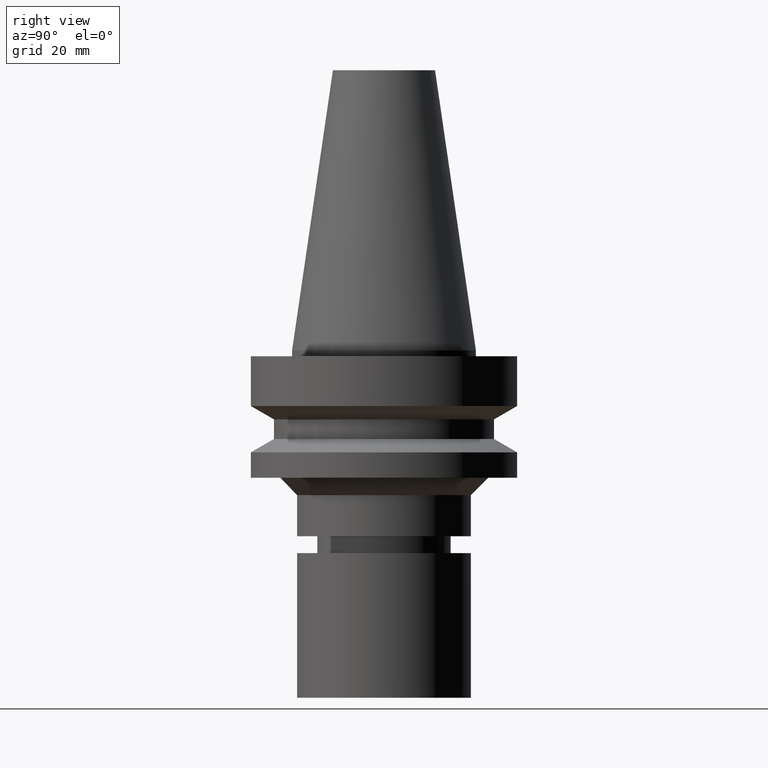
[diagram: clean part render]
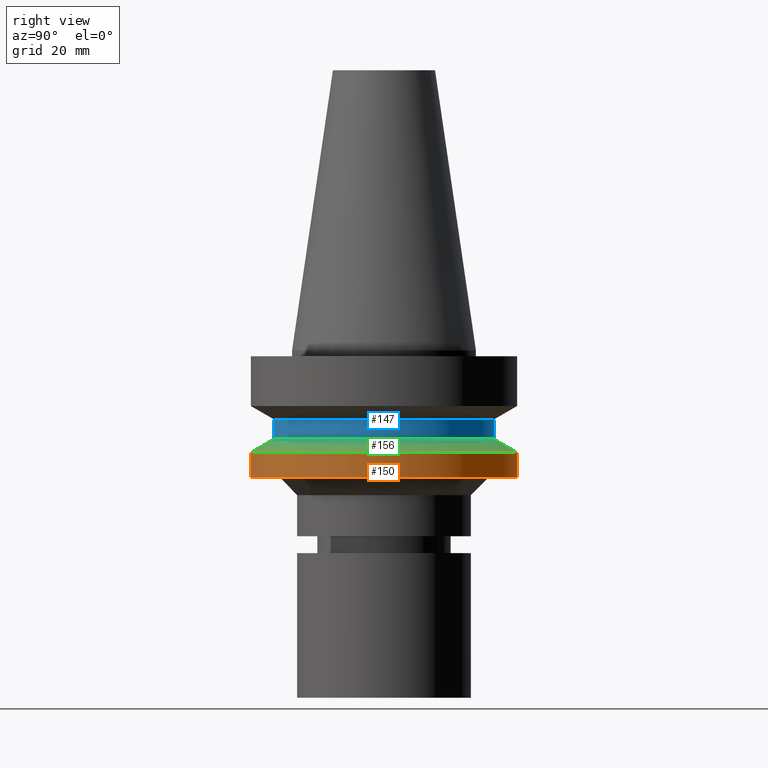
[diagram: same view with three faces highlighted in distinct colors, each labeled with its STEP entity id]
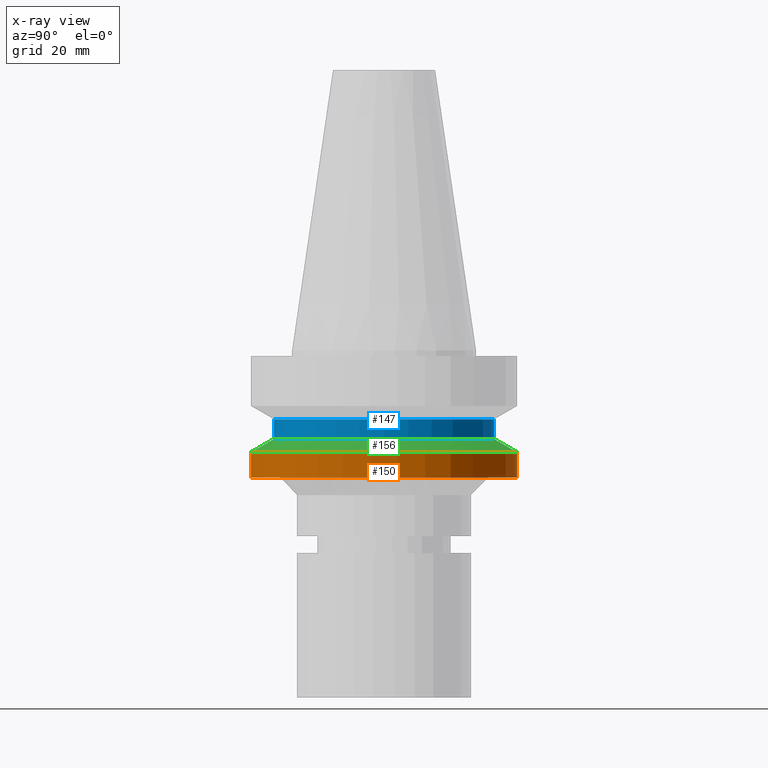
[diagram: x-ray of the same camera — body ghosted, the three highlighted faces saturated]
A machine part, right view with three faces highlighted in distinct colors.
The next image is the same camera in x-ray (body ghosted, the three faces saturated) — at least one of them is partly hidden behind the body in this view.
Their STEP definitions:

[orange] entity #150 — the highlighted cylindrical surface (bore or boss wall) has radius 23 mm, axis along (0, 0, -1).
#108=EDGE_CURVE('Unnamed[1]',#249,#249,#250,.T.);
#150=ADVANCED_FACE('Unnamed[1]',(#313,#314),#315,.T.);
#161=EDGE_CURVE('Unnamed[1]',#332,#332,#333,.T.);
#249=VERTEX_POINT('',#438);
#250=CIRCLE('',#439,23.0);
#313=FACE_BOUND('',#516,.T.);
#314=FACE_BOUND('',#517,.T.);
#315=CYLINDRICAL_SURFACE('',#518,23.0);
#332=VERTEX_POINT('',#539);
#333=CIRCLE('',#540,23.0);
#438=CARTESIAN_POINT('',(1.07768918324967E-015,23.0,-17.6));
#439=AXIS2_PLACEMENT_3D('',#630,#631,#632);
#516=EDGE_LOOP('',(#702));
#517=EDGE_LOOP('',(#703));
#518=AXIS2_PLACEMENT_3D('',#704,#705,#706);
#539=CARTESIAN_POINT('',(1.34711147906209E-015,23.0,-22.0));
#540=AXIS2_PLACEMENT_3D('',#725,#726,#727);
#630=CARTESIAN_POINT('',(1.07768918324967E-015,2.15537836649934E-015,-17.6));
#631=DIRECTION('',(6.12323399573677E-017,1.22464679914735E-016,-1.0));
#632=DIRECTION('',(-1.23259516440783E-032,1.0,1.22464679914735E-016));
#702=ORIENTED_EDGE('',*,*,#161,.F.);
#703=ORIENTED_EDGE('',*,*,#108,.T.);
#704=CARTESIAN_POINT('',(1.21240033115588E-015,2.42480066231176E-015,-19.8));
#705=DIRECTION('',(6.12323399573677E-017,1.22464679914735E-016,-1.0));
#706=DIRECTION('',(-1.23259516440783E-032,1.0,1.22464679914735E-016));
#725=CARTESIAN_POINT('',(1.34711147906209E-015,2.69422295812418E-015,-22.0));
#726=DIRECTION('',(6.12323399573677E-017,1.22464679914735E-016,-1.0));
#727=DIRECTION('',(-1.23259516440783E-032,1.0,1.22464679914735E-016));

[blue] entity #147 — the highlighted cylindrical surface (bore or boss wall) has radius 19 mm, axis along (0, 0, -1).
#87=EDGE_CURVE('Unnamed[1]',#219,#219,#220,.T.);
#89=EDGE_CURVE('Unnamed[1]',#222,#222,#223,.T.);
#147=ADVANCED_FACE('Unnamed[1]',(#308,#309),#310,.T.);
#219=VERTEX_POINT('',#400);
#220=CIRCLE('',#401,19.0);
#222=VERTEX_POINT('',#404);
#223=CIRCLE('',#405,19.0);
#308=FACE_BOUND('',#510,.T.);
#309=FACE_BOUND('',#511,.T.);
#310=CYLINDRICAL_SURFACE('',#512,19.0);
#400=CARTESIAN_POINT('',(9.36279151221199E-016,19.0,-15.29059892));
#401=AXIS2_PLACEMENT_3D('',#600,#601,#602);
#404=CARTESIAN_POINT('',(7.29240495619202E-016,19.0,-11.90940108));
#405=AXIS2_PLACEMENT_3D('',#603,#604,#605);
#510=EDGE_LOOP('',(#696));
#511=EDGE_LOOP('',(#697));
#512=AXIS2_PLACEMENT_3D('',#698,#699,#700);
#600=CARTESIAN_POINT('',(9.36279151221199E-016,1.8725583024424E-015,-15.29059892));
#601=DIRECTION('',(6.12323399573677E-017,1.22464679914735E-016,-1.0));
#602=DIRECTION('',(-1.23259516440783E-032,1.0,1.22464679914735E-016));
#603=CARTESIAN_POINT('',(7.29240495619202E-016,1.4584809912384E-015,-11.90940108));
#604=DIRECTION('',(6.12323399573677E-017,1.22464679914735E-016,-1.0));
#605=DIRECTION('',(-1.23259516440783E-032,1.0,1.22464679914735E-016));
#696=ORIENTED_EDGE('',*,*,#87,.F.);
#697=ORIENTED_EDGE('',*,*,#89,.T.);
#698=CARTESIAN_POINT('',(8.32759823420201E-016,1.6655196468404E-015,-13.6));
#699=DIRECTION('',(6.12323399573677E-017,1.22464679914735E-016,-1.0));
#700=DIRECTION('',(-1.23259516440783E-032,1.0,1.22464679914735E-016));

[green] entity #156 — the highlighted conical surface has half-angle 60 deg.
#87=EDGE_CURVE('Unnamed[1]',#219,#219,#220,.T.);
#108=EDGE_CURVE('Unnamed[1]',#249,#249,#250,.T.);
#156=ADVANCED_FACE('Unnamed[1]',(#323,#324),#325,.T.);
#219=VERTEX_POINT('',#400);
#220=CIRCLE('',#401,19.0);
#249=VERTEX_POINT('',#438);
#250=CIRCLE('',#439,23.0);
#323=FACE_BOUND('',#528,.T.);
#324=FACE_BOUND('',#529,.T.);
#325=CONICAL_SURFACE('',#530,21.0,1.04719755058882);
#400=CARTESIAN_POINT('',(9.36279151221199E-016,19.0,-15.29059892));
#401=AXIS2_PLACEMENT_3D('',#600,#601,#602);
#438=CARTESIAN_POINT('',(1.07768918324967E-015,23.0,-17.6));
#439=AXIS2_PLACEMENT_3D('',#630,#631,#632);
#528=EDGE_LOOP('',(#714));
#529=EDGE_LOOP('',(#715));
#530=AXIS2_PLACEMENT_3D('',#716,#717,#718);
#600=CARTESIAN_POINT('',(9.36279151221199E-016,1.8725583024424E-015,-15.29059892));
#601=DIRECTION('',(6.12323399573677E-017,1.22464679914735E-016,-1.0));
#602=DIRECTION('',(-1.23259516440783E-032,1.0,1.22464679914735E-016));
#630=CARTESIAN_POINT('',(1.07768918324967E-015,2.15537836649934E-015,-17.6));
#631=DIRECTION('',(6.12323399573677E-017,1.22464679914735E-016,-1.0));
#632=DIRECTION('',(-1.23259516440783E-032,1.0,1.22464679914735E-016));
#714=ORIENTED_EDGE('',*,*,#108,.F.);
#715=ORIENTED_EDGE('',*,*,#87,.T.);
#716=CARTESIAN_POINT('',(1.00698416723543E-015,2.01396833447087E-015,-16.44529946));
#717=DIRECTION('',(6.12323399573677E-017,1.22464679914735E-016,-1.0));
#718=DIRECTION('',(-1.23259516440783E-032,1.0,1.22464679914735E-016));